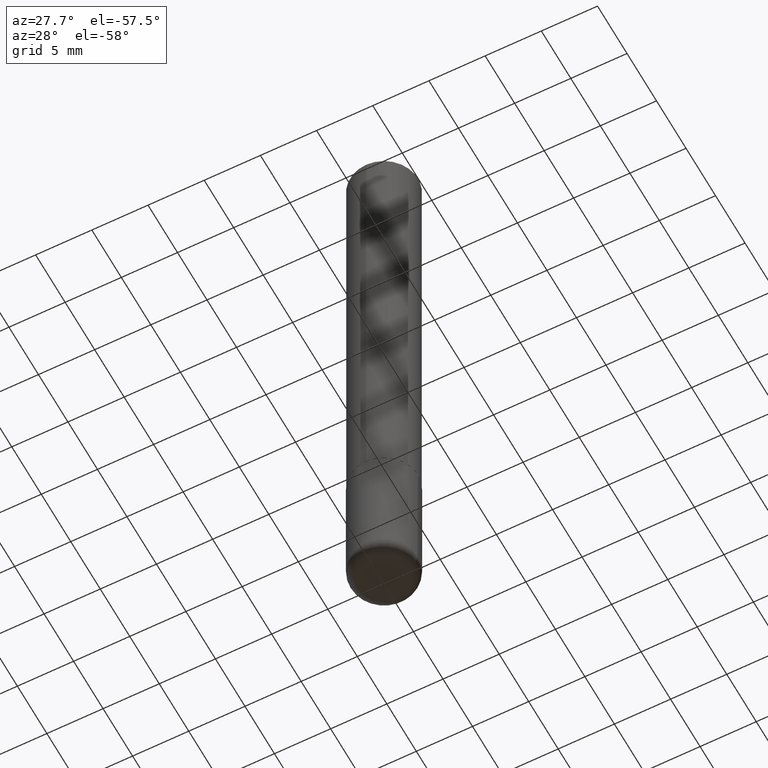
[diagram: clean part render]
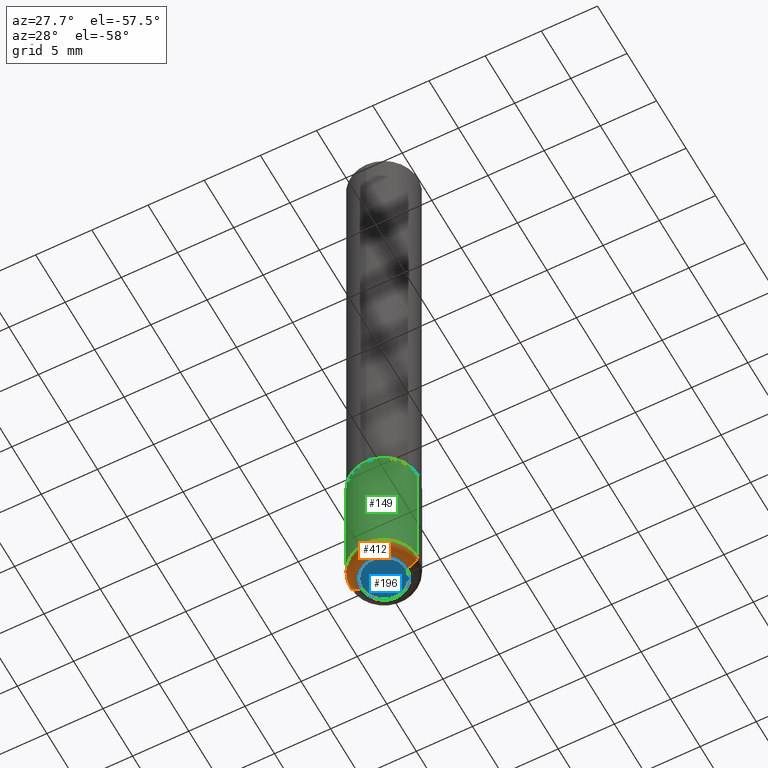
[diagram: same view with three faces highlighted in distinct colors, each labeled with its STEP entity id]
A machine part, auxiliary view with three faces highlighted in distinct colors.
Their STEP definitions:

[orange] entity #412 — the highlighted toroidal blend (fillet) surface has major radius 1.999 mm and minor (blend) radius 1.0008 mm.
#12 = CARTESIAN_POINT ( 'NONE',  ( 0.07870000000000000606, -8.384792435231810596E-15, -2.244099999999999540 ) ) ;
#15 = CIRCLE ( 'NONE', #146, 0.03939999999999978936 ) ;
#22 = CARTESIAN_POINT ( 'NONE',  ( 0.1180999999999998995, -8.522356799982231388E-15, -2.204700000000000326 ) ) ;
#29 = EDGE_CURVE ( 'NONE', #130, #295, #354, .T. ) ;
#42 = AXIS2_PLACEMENT_3D ( 'NONE', #408, #122, #278 ) ;
#43 = CARTESIAN_POINT ( 'NONE',  ( 5.391525076996371277E-29, -7.697668907747483125E-15, -2.204700000000000326 ) ) ;
#44 = DIRECTION ( 'NONE',  ( 1.000000000000000000, -6.982962677686266711E-15, 0.000000000000000000 ) ) ;
#70 = EDGE_LOOP ( 'NONE', ( #327, #195, #180, #392 ) ) ;
#95 = CARTESIAN_POINT ( 'NONE',  ( -0.07870000000000000606, -7.138471774704284335E-15, -2.204700000000000326 ) ) ;
#106 = VERTEX_POINT ( 'NONE', #376 ) ;
#120 = DIRECTION ( 'NONE',  ( 1.000000000000000000, -6.982962677686265133E-15, 0.000000000000000000 ) ) ;
#122 = DIRECTION ( 'NONE',  ( -2.445468806185136597E-29, 3.491481338843145583E-15, 1.000000000000000000 ) ) ;
#123 = AXIS2_PLACEMENT_3D ( 'NONE', #43, #148, #120 ) ;
#124 = FACE_OUTER_BOUND ( 'NONE', #70, .T. ) ;
#127 = EDGE_CURVE ( 'NONE', #106, #130, #137, .T. ) ;
#128 = CARTESIAN_POINT ( 'NONE',  ( -0.1180999999999998995, -6.858517936814806506E-15, -2.204700000000000326 ) ) ;
#130 = VERTEX_POINT ( 'NONE', #12 ) ;
#137 = CIRCLE ( 'NONE', #42, 0.07870000000000000606 ) ;
#146 = AXIS2_PLACEMENT_3D ( 'NONE', #95, #160, #388 ) ;
#148 = DIRECTION ( 'NONE',  ( -2.445468806185136597E-29, 3.491481338843145583E-15, 1.000000000000000000 ) ) ;
#160 = DIRECTION ( 'NONE',  ( 7.105427357601001859E-15, 1.000000000000000000, -3.491481338843145583E-15 ) ) ;
#168 = DIRECTION ( 'NONE',  ( 1.000000000000000000, -6.982962677686268288E-15, 4.883557194083112901E-29 ) ) ;
#180 = ORIENTED_EDGE ( 'NONE', *, *, #29, .T. ) ;
#195 = ORIENTED_EDGE ( 'NONE', *, *, #127, .T. ) ;
#201 = DIRECTION ( 'NONE',  ( -2.445468806185136597E-29, 3.491481338843145583E-15, 1.000000000000000000 ) ) ;
#258 = EDGE_CURVE ( 'NONE', #367, #295, #385, .T. ) ;
#278 = DIRECTION ( 'NONE',  ( 1.000000000000000000, -6.982962677686269077E-15, 0.000000000000000000 ) ) ;
#295 = VERTEX_POINT ( 'NONE', #22 ) ;
#296 = CARTESIAN_POINT ( 'NONE',  ( 5.391525076996371277E-29, -7.697668907747483125E-15, -2.204700000000000326 ) ) ;
#314 = DIRECTION ( 'NONE',  ( -6.982962677686266711E-15, -1.000000000000000000, 3.491481338843145583E-15 ) ) ;
#319 = TOROIDAL_SURFACE ( 'NONE', #363, 0.07870000000000000606, 0.03939999999999978936 ) ;
#327 = ORIENTED_EDGE ( 'NONE', *, *, #328, .F. ) ;
#328 = EDGE_CURVE ( 'NONE', #106, #367, #15, .T. ) ;
#341 = CARTESIAN_POINT ( 'NONE',  ( 0.07870000000000000606, -8.247228070481392959E-15, -2.204700000000000326 ) ) ;
#349 = AXIS2_PLACEMENT_3D ( 'NONE', #341, #314, #44 ) ;
#354 = CIRCLE ( 'NONE', #349, 0.03939999999999978936 ) ;
#363 = AXIS2_PLACEMENT_3D ( 'NONE', #296, #201, #168 ) ;
#367 = VERTEX_POINT ( 'NONE', #128 ) ;
#376 = CARTESIAN_POINT ( 'NONE',  ( -0.07870000000000000606, -7.067277038134755422E-15, -2.244099999999999540 ) ) ;
#385 = CIRCLE ( 'NONE', #123, 0.1180999999999999966 ) ;
#388 = DIRECTION ( 'NONE',  ( -1.000000000000000000, 7.105427357600989237E-15, 0.000000000000000000 ) ) ;
#392 = ORIENTED_EDGE ( 'NONE', *, *, #258, .F. ) ;
#408 = CARTESIAN_POINT ( 'NONE',  ( 5.487876547960064752E-29, -7.835233272497900762E-15, -2.244099999999999540 ) ) ;
#412 = ADVANCED_FACE ( 'NONE', ( #124 ), #319, .T. ) ;

[blue] entity #196 — the highlighted planar face has unit normal (0, -0, -1).
#12 = CARTESIAN_POINT ( 'NONE',  ( 0.07870000000000000606, -8.384792435231810596E-15, -2.244099999999999540 ) ) ;
#24 = DIRECTION ( 'NONE',  ( -1.000000000000000000, 6.982962677686265922E-15, -4.876176775795935793E-29 ) ) ;
#40 = ORIENTED_EDGE ( 'NONE', *, *, #127, .F. ) ;
#42 = AXIS2_PLACEMENT_3D ( 'NONE', #408, #122, #278 ) ;
#47 = EDGE_CURVE ( 'NONE', #130, #106, #75, .T. ) ;
#50 = AXIS2_PLACEMENT_3D ( 'NONE', #147, #190, #373 ) ;
#75 = CIRCLE ( 'NONE', #50, 0.07870000000000000606 ) ;
#106 = VERTEX_POINT ( 'NONE', #376 ) ;
#122 = DIRECTION ( 'NONE',  ( -2.445468806185136597E-29, 3.491481338843145583E-15, 1.000000000000000000 ) ) ;
#127 = EDGE_CURVE ( 'NONE', #106, #130, #137, .T. ) ;
#130 = VERTEX_POINT ( 'NONE', #12 ) ;
#137 = CIRCLE ( 'NONE', #42, 0.07870000000000000606 ) ;
#147 = CARTESIAN_POINT ( 'NONE',  ( 5.487876547960064752E-29, -7.835233272497900762E-15, -2.244099999999999540 ) ) ;
#158 = PLANE ( 'NONE',  #330 ) ;
#190 = DIRECTION ( 'NONE',  ( -2.445468806185136597E-29, 3.491481338843145583E-15, 1.000000000000000000 ) ) ;
#196 = ADVANCED_FACE ( 'NONE', ( #384 ), #158, .T. ) ;
#206 = ORIENTED_EDGE ( 'NONE', *, *, #47, .F. ) ;
#210 = EDGE_LOOP ( 'NONE', ( #206, #40 ) ) ;
#278 = DIRECTION ( 'NONE',  ( 1.000000000000000000, -6.982962677686269077E-15, 0.000000000000000000 ) ) ;
#281 = DIRECTION ( 'NONE',  ( 2.438088387897960049E-29, -3.491481338843145188E-15, -1.000000000000000000 ) ) ;
#287 = CARTESIAN_POINT ( 'NONE',  ( 1.092743596228401244E-28, -4.547459069109707912E-17, -2.244099999999999540 ) ) ;
#330 = AXIS2_PLACEMENT_3D ( 'NONE', #287, #281, #24 ) ;
#373 = DIRECTION ( 'NONE',  ( 1.000000000000000000, -6.982962677686269077E-15, 0.000000000000000000 ) ) ;
#376 = CARTESIAN_POINT ( 'NONE',  ( -0.07870000000000000606, -7.067277038134755422E-15, -2.244099999999999540 ) ) ;
#384 = FACE_OUTER_BOUND ( 'NONE', #210, .T. ) ;
#408 = CARTESIAN_POINT ( 'NONE',  ( 5.487876547960064752E-29, -7.835233272497900762E-15, -2.244099999999999540 ) ) ;

[green] entity #149 — the highlighted cylindrical surface (partial cylindrical patch) has radius 2.9997 mm, axis along (-0, 0, 1).
#6 = EDGE_LOOP ( 'NONE', ( #8, #101, #164, #104 ) ) ;
#8 = ORIENTED_EDGE ( 'NONE', *, *, #94, .F. ) ;
#13 = CYLINDRICAL_SURFACE ( 'NONE', #171, 0.1181000000000000105 ) ;
#16 = LINE ( 'NONE', #212, #318 ) ;
#22 = CARTESIAN_POINT ( 'NONE',  ( 0.1180999999999998995, -8.522356799982231388E-15, -2.204700000000000326 ) ) ;
#43 = CARTESIAN_POINT ( 'NONE',  ( 5.391525076996371277E-29, -7.697668907747483125E-15, -2.204700000000000326 ) ) ;
#54 = CARTESIAN_POINT ( 'NONE',  ( 0.1181000000000000105, -8.246878922347482626E-16, 5.758764772215001141E-30 ) ) ;
#56 = DIRECTION ( 'NONE',  ( -2.445468806185136597E-29, 3.491481338843145583E-15, 1.000000000000000000 ) ) ;
#82 = DIRECTION ( 'NONE',  ( -2.445468806185136877E-29, 3.491481338843145188E-15, 1.000000000000000000 ) ) ;
#86 = CARTESIAN_POINT ( 'NONE',  ( 0.000000000000000000, 0.000000000000000000, 0.000000000000000000 ) ) ;
#94 = EDGE_CURVE ( 'NONE', #367, #288, #16, .T. ) ;
#101 = ORIENTED_EDGE ( 'NONE', *, *, #258, .T. ) ;
#104 = ORIENTED_EDGE ( 'NONE', *, *, #333, .F. ) ;
#114 = AXIS2_PLACEMENT_3D ( 'NONE', #285, #56, #348 ) ;
#120 = DIRECTION ( 'NONE',  ( 1.000000000000000000, -6.982962677686265133E-15, 0.000000000000000000 ) ) ;
#123 = AXIS2_PLACEMENT_3D ( 'NONE', #43, #148, #120 ) ;
#126 = VERTEX_POINT ( 'NONE', #305 ) ;
#128 = CARTESIAN_POINT ( 'NONE',  ( -0.1180999999999998995, -6.858517936814806506E-15, -2.204700000000000326 ) ) ;
#148 = DIRECTION ( 'NONE',  ( -2.445468806185136597E-29, 3.491481338843145583E-15, 1.000000000000000000 ) ) ;
#149 = ADVANCED_FACE ( 'NONE', ( #343 ), #13, .T. ) ;
#150 = DIRECTION ( 'NONE',  ( -2.445468806185136597E-29, 3.491481338843145583E-15, 1.000000000000000000 ) ) ;
#164 = ORIENTED_EDGE ( 'NONE', *, *, #406, .T. ) ;
#171 = AXIS2_PLACEMENT_3D ( 'NONE', #86, #150, #405 ) ;
#181 = VECTOR ( 'NONE', #313, 39.37007874015748143 ) ;
#212 = CARTESIAN_POINT ( 'NONE',  ( -0.1181000000000000105, 8.391509709326783943E-16, -5.809262341591044484E-30 ) ) ;
#219 = LINE ( 'NONE', #54, #181 ) ;
#258 = EDGE_CURVE ( 'NONE', #367, #295, #385, .T. ) ;
#285 = CARTESIAN_POINT ( 'NONE',  ( 4.236285612954512392E-29, -6.048293123277981078E-15, -1.732299999999999951 ) ) ;
#288 = VERTEX_POINT ( 'NONE', #381 ) ;
#295 = VERTEX_POINT ( 'NONE', #22 ) ;
#305 = CARTESIAN_POINT ( 'NONE',  ( 0.1181000000000000383, -6.872981015512729341E-15, -1.732299999999999951 ) ) ;
#313 = DIRECTION ( 'NONE',  ( -2.445468806185136877E-29, 3.491481338843145188E-15, 1.000000000000000000 ) ) ;
#318 = VECTOR ( 'NONE', #82, 39.37007874015748143 ) ;
#333 = EDGE_CURVE ( 'NONE', #288, #126, #351, .T. ) ;
#343 = FACE_OUTER_BOUND ( 'NONE', #6, .T. ) ;
#348 = DIRECTION ( 'NONE',  ( 1.000000000000000000, -6.982962677686262766E-15, 0.000000000000000000 ) ) ;
#351 = CIRCLE ( 'NONE', #114, 0.1181000000000000383 ) ;
#367 = VERTEX_POINT ( 'NONE', #128 ) ;
#381 = CARTESIAN_POINT ( 'NONE',  ( -0.1181000000000000522, -6.033830044580054299E-15, -1.732299999999999951 ) ) ;
#385 = CIRCLE ( 'NONE', #123, 0.1180999999999999966 ) ;
#405 = DIRECTION ( 'NONE',  ( 1.000000000000000000, -6.982962677686267499E-15, 4.876176775795936353E-29 ) ) ;
#406 = EDGE_CURVE ( 'NONE', #295, #126, #219, .T. ) ;